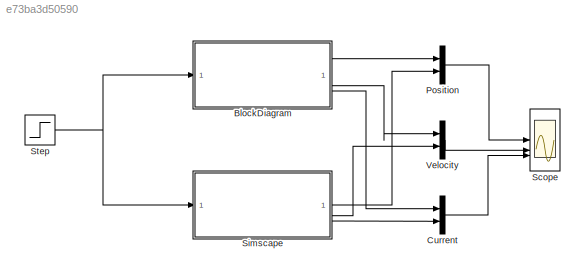
MODEL slx_e73ba3d50590
KIND model
CONFIG AbsTol = auto
CONFIG EnableMultiTasking = off
CONFIG FixedStep = auto
CONFIG InitFcn = Ra = 2;\nKt = 0.01;\nb = 0.0012;\nLa = 0.023;\nKe = 0.01;\nJ = 0.001;
CONFIG MaxStep = auto
CONFIG MinStep = auto
CONFIG RelTol = 1e-3
CONFIG SampleTimeConstraint = Unconstrained
CONFIG SolverName = VariableStepAuto
CONFIG StartTime = 0.0
CONFIG StopTime = 5
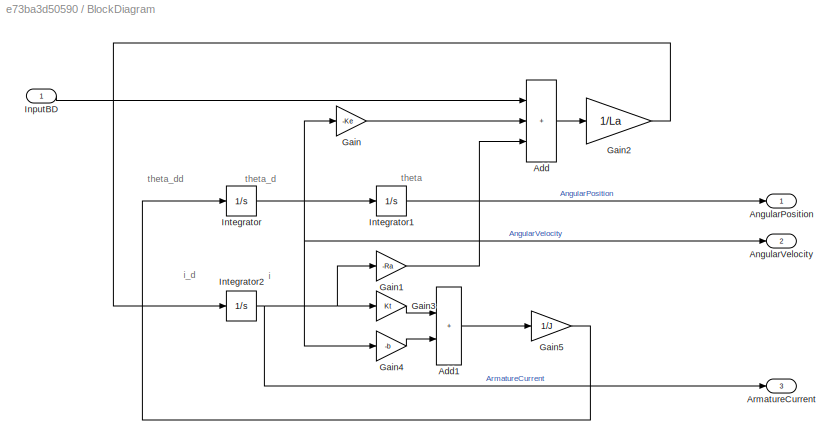
BLOCK [SubSystem] BlockDiagram
BLOCK [Sum] BlockDiagram/Add
  IconShape = rectangular
  Inputs = +++
BLOCK [Sum] BlockDiagram/Add1
  IconShape = rectangular
BLOCK [Outport] BlockDiagram/AngularPosition
BLOCK [Outport] BlockDiagram/AngularVelocity
  Port = 2
BLOCK [Outport] BlockDiagram/ArmatureCurrent
  Port = 3
BLOCK [Gain] BlockDiagram/Gain
  Gain = -Ke
BLOCK [Gain] BlockDiagram/Gain1
  Gain = -Ra
BLOCK [Gain] BlockDiagram/Gain2
  Gain = 1/La
BLOCK [Gain] BlockDiagram/Gain3
  Gain = Kt
BLOCK [Gain] BlockDiagram/Gain4
  Gain = -b
BLOCK [Gain] BlockDiagram/Gain5
  Gain = 1/J
BLOCK [Inport] BlockDiagram/InputBD
BLOCK [Integrator] BlockDiagram/Integrator
BLOCK [Integrator] BlockDiagram/Integrator1
BLOCK [Integrator] BlockDiagram/Integrator2
BLOCK [Mux] Current
  DisplayOption = bar
  Inputs = 2
BLOCK [Mux] Position
  DisplayOption = bar
  Inputs = 2
BLOCK [Scope] Scope
  Floating = off
  NumInputPorts = 3
  ScopeSpecificationString = Simulink.scopes.TimeScopeBlockCfg('CurrentConfiguration', extmgr.ConfigurationSet(extmgr.Configuration('Core','General UI',true),extmgr.Configuration('Core','Source UI',true),extmgr.Configuration('Sources','WiredSimulink',true,'DataLogging',true,'DataLoggingSaveFormat','StructureWithTime'),extmgr.Configuration('Visuals','Time Domain',true,'SerializedDisplays',{struct('MinYLimReal','-2.09526','MaxY...<+3912ch>
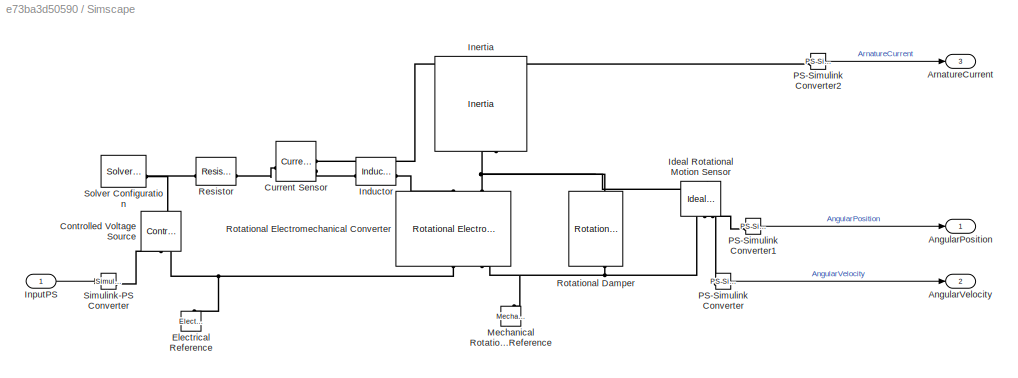
BLOCK [SubSystem] Simscape
BLOCK [Outport] Simscape/AngularPosition
BLOCK [Outport] Simscape/AngularVelocity
  Port = 2
BLOCK [Outport] Simscape/ArnatureCurrent
  Port = 3
BLOCK [Reference] Simscape/Controlled Voltage Source  REF=fl_lib/Electrical/Electrical Sources/Controlled Voltage
Source
  NameLocation = right
  SourceBlock = fl_lib/Electrical/Electrical Sources/Controlled Voltage\nSource
  SourceType = Controlled Voltage\nSource
BLOCK [Reference] Simscape/Current Sensor  REF=fl_lib/Electrical/Electrical Sensors/Current Sensor
  SourceBlock = fl_lib/Electrical/Electrical Sensors/Current Sensor
  SourceType = Current Sensor
BLOCK [Reference] Simscape/Electrical Reference  REF=fl_lib/Electrical/Electrical Elements/Electrical Reference
  NameLocation = right
  SourceBlock = fl_lib/Electrical/Electrical Elements/Electrical Reference
  SourceType = Electrical Reference
BLOCK [Reference] Simscape/Ideal Rotational Motion Sensor  REF=fl_lib/Mechanical/Mechanical Sensors/Ideal Rotational
Motion Sensor
  NameLocation = left
  SourceBlock = fl_lib/Mechanical/Mechanical Sensors/Ideal Rotational\nMotion Sensor
  SourceType = Ideal Rotational\nMotion Sensor
BLOCK [Reference] Simscape/Inductor  REF=fl_lib/Electrical/Electrical Elements/Inductor
  SourceBlock = fl_lib/Electrical/Electrical Elements/Inductor
  SourceType = Inductor
BLOCK [Reference] Simscape/Inertia  REF=fl_lib/Mechanical/Rotational Elements/Inertia
  NameLocation = right
  SourceBlock = fl_lib/Mechanical/Rotational Elements/Inertia
  SourceType = Inertia
BLOCK [Inport] Simscape/InputPS
BLOCK [Reference] Simscape/Mechanical Rotational Reference  REF=fl_lib/Mechanical/Rotational Elements/Mechanical
Rotational Reference
  NameLocation = right
  SourceBlock = fl_lib/Mechanical/Rotational Elements/Mechanical\nRotational Reference
  SourceType = Mechanical\nRotational Reference
BLOCK [Reference] Simscape/PS-Simulink Converter  REF=nesl_utility/PS-Simulink
Converter
  SourceBlock = nesl_utility/PS-Simulink\nConverter
  SourceType = PS-Simulink\nConverter
BLOCK [Reference] Simscape/PS-Simulink Converter1  REF=nesl_utility/PS-Simulink
Converter
  SourceBlock = nesl_utility/PS-Simulink\nConverter
  SourceType = PS-Simulink\nConverter
BLOCK [Reference] Simscape/PS-Simulink Converter2  REF=nesl_utility/PS-Simulink
Converter
  SourceBlock = nesl_utility/PS-Simulink\nConverter
  SourceType = PS-Simulink\nConverter
BLOCK [Reference] Simscape/Resistor  REF=fl_lib/Electrical/Electrical Elements/Resistor
  SourceBlock = fl_lib/Electrical/Electrical Elements/Resistor
  SourceType = Resistor
BLOCK [Reference] Simscape/Rotational Damper  REF=fl_lib/Mechanical/Rotational Elements/Rotational Damper
  NameLocation = left
  SourceBlock = fl_lib/Mechanical/Rotational Elements/Rotational Damper
  SourceType = Rotational Damper
BLOCK [Reference] Simscape/Rotational Electromechanical Converter  REF=fl_lib/Electrical/Electrical Elements/Rotational
Electromechanical
Converter
  NameLocation = right
  SourceBlock = fl_lib/Electrical/Electrical Elements/Rotational\nElectromechanical\nConverter
  SourceType = Rotational\nElectromechanical\nConverter
BLOCK [Reference] Simscape/Simulink-PS Converter  REF=nesl_utility/Simulink-PS
Converter
  SourceBlock = nesl_utility/Simulink-PS\nConverter
  SourceType = Simulink-PS\nConverter
BLOCK [Reference] Simscape/Solver Configuration  REF=nesl_utility/Solver
Configuration
  SourceBlock = nesl_utility/Solver\nConfiguration
  SourceType = Solver\nConfiguration
BLOCK [Step] Step
  SampleTime = 0
  Time = 0
BLOCK [Mux] Velocity
  DisplayOption = bar
  Inputs = 2
ANNOTATION BlockDiagram: i
ANNOTATION BlockDiagram: i_d
ANNOTATION BlockDiagram: theta
ANNOTATION BlockDiagram: theta_d
ANNOTATION BlockDiagram: theta_dd
LINE BlockDiagram/Add1:1 -> BlockDiagram/Gain5:1
LINE BlockDiagram/Add:1 -> BlockDiagram/Gain2:1
LINE BlockDiagram/Gain1:1 -> BlockDiagram/Add:3
LINE BlockDiagram/Gain2:1 -> BlockDiagram/Integrator2:1
LINE BlockDiagram/Gain3:1 -> BlockDiagram/Add1:1
LINE BlockDiagram/Gain4:1 -> BlockDiagram/Add1:2
LINE BlockDiagram/Gain5:1 -> BlockDiagram/Integrator:1
LINE BlockDiagram/Gain:1 -> BlockDiagram/Add:2
LINE BlockDiagram/InputBD:1 -> BlockDiagram/Add:1
LINE BlockDiagram/Integrator1:1 -> BlockDiagram/AngularPosition:1
NET BlockDiagram/Integrator2:1 -> BlockDiagram/ArmatureCurrent:1, BlockDiagram/Gain1:1, BlockDiagram/Gain3:1
NET BlockDiagram/Integrator:1 -> BlockDiagram/AngularVelocity:1, BlockDiagram/Gain4:1, BlockDiagram/Gain:1, BlockDiagram/Integrator1:1
LINE BlockDiagram:1 -> Position:1
LINE BlockDiagram:2 -> Velocity:1
LINE BlockDiagram:3 -> Current:1
LINE Current:1 -> Scope:3
LINE Position:1 -> Scope:1
LINE Simscape/InputPS:1 -> Simscape/Simulink-PS Converter:1
LINE Simscape/PS-Simulink Converter1:1 -> Simscape/AngularPosition:1
LINE Simscape/PS-Simulink Converter2:1 -> Simscape/ArnatureCurrent:1
LINE Simscape/PS-Simulink Converter:1 -> Simscape/AngularVelocity:1
LINE Simscape:1 -> Position:2
LINE Simscape:2 -> Velocity:2
LINE Simscape:3 -> Current:2
NET Step:1 -> BlockDiagram:1, Simscape:1
LINE Velocity:1 -> Scope:2
PNET net1: Simscape/Controlled Voltage Source:LConn1 -- Simscape/Resistor:LConn1 -- Simscape/Solver Configuration:RConn1
PLINE Simscape/Controlled Voltage Source:RConn1 -- Simscape/Simulink-PS Converter:RConn1
PNET net2: Simscape/Controlled Voltage Source:RConn2 -- Simscape/Electrical Reference:LConn1 -- Simscape/Rotational Electromechanical Converter:RConn1
PLINE Simscape/Current Sensor:LConn1 -- Simscape/Resistor:RConn1
PLINE Simscape/Current Sensor:RConn1 -- Simscape/PS-Simulink Converter2:LConn1
PLINE Simscape/Current Sensor:RConn2 -- Simscape/Inductor:LConn1
PNET net3: Simscape/Ideal Rotational Motion Sensor:LConn1 -- Simscape/Inertia:LConn1 -- Simscape/Rotational Damper:LConn1 -- Simscape/Rotational Electromechanical Converter:LConn2
PNET net4: Simscape/Ideal Rotational Motion Sensor:RConn1 -- Simscape/Mechanical Rotational Reference:LConn1 -- Simscape/Rotational Damper:RConn1 -- Simscape/Rotational Electromechanical Converter:RConn2
PLINE Simscape/Ideal Rotational Motion Sensor:RConn2 -- Simscape/PS-Simulink Converter:LConn1
PLINE Simscape/Ideal Rotational Motion Sensor:RConn3 -- Simscape/PS-Simulink Converter1:LConn1
PLINE Simscape/Inductor:RConn1 -- Simscape/Rotational Electromechanical Converter:LConn1
note: NET lines group one-source signal fan-out (src -> all destinations, sorted); 1:1 wires keep LINE; PNET lines group multi-terminal physical nets as a canonical sorted terminal list (undirected conserving connections); 2-terminal nets keep the pairwise PLINE form
